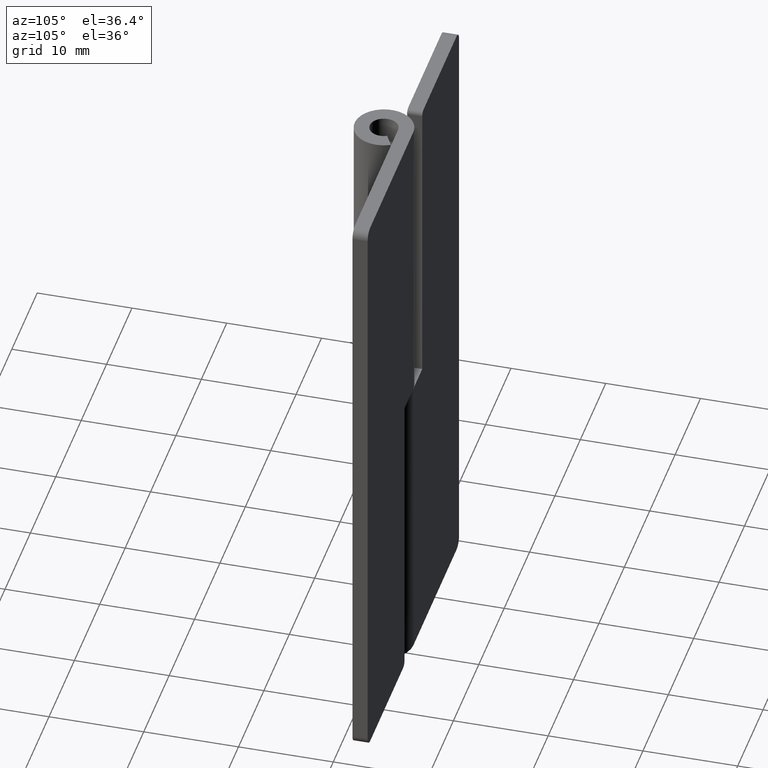
[diagram: clean part render]
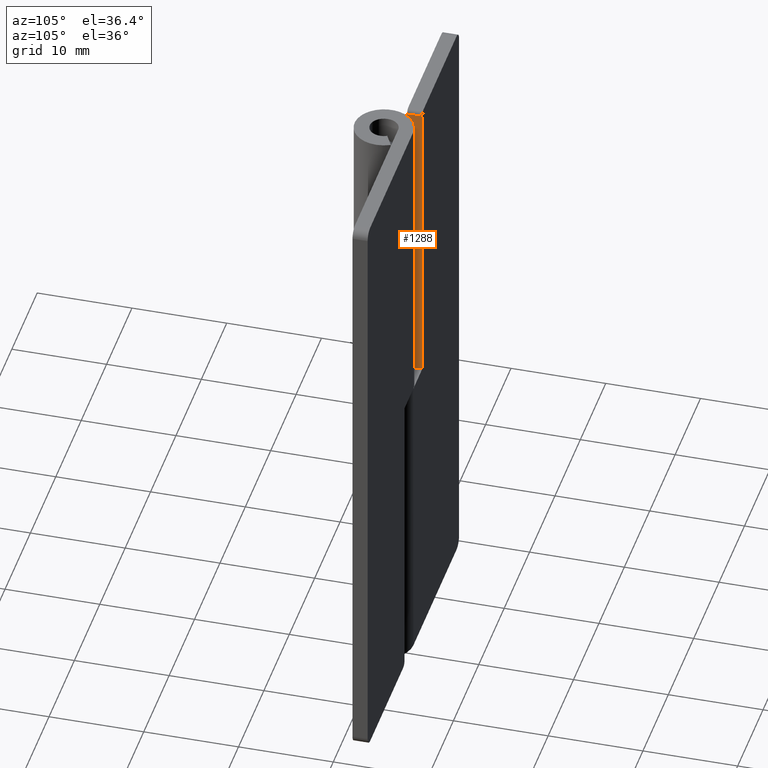
[diagram: same view with one face highlighted and labeled with its STEP entity id]
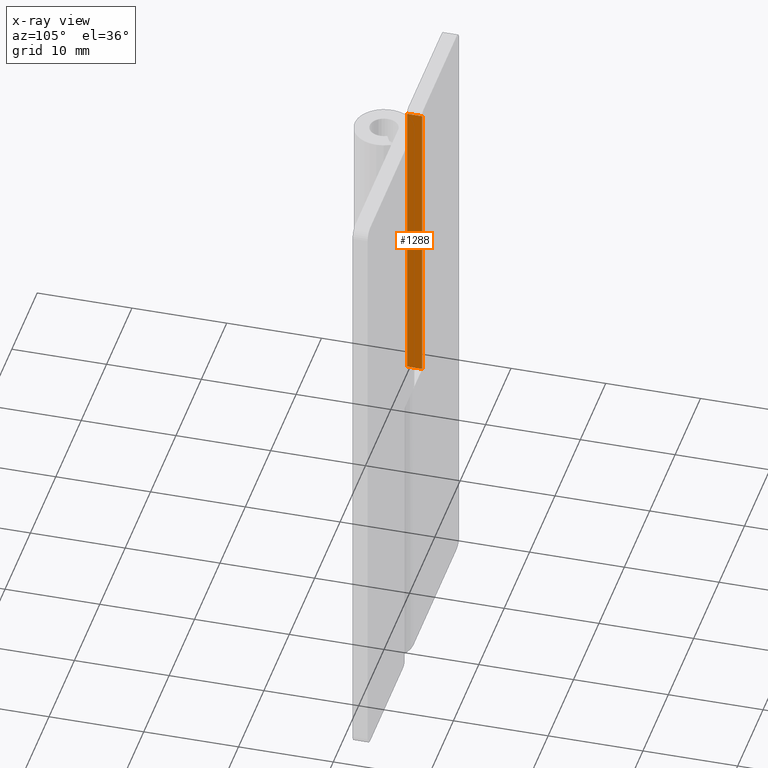
[diagram: x-ray of the same camera — body ghosted, the highlighted face saturated]
A machine part, auxiliary view. The second image highlights one B-rep face of the part: STEP entity #1288.
The next image is the same camera in x-ray: the body ghosted, the highlighted face saturated — about 0% of this face is hidden behind the body in this view.
In plain terms, the highlighted face is a freeform B-spline surface patch.
Its self-contained STEP definition (entity closure, byte-faithful):
#1002=CARTESIAN_POINT('',(-3.500000000000000,1.500000000000000,64.500000000000000));
#1003=VERTEX_POINT('',#1002);
#1019=CARTESIAN_POINT('',(-3.500000000000000,3.099998000000050,64.500000000000000));
#1020=VERTEX_POINT('',#1019);
#1021=CARTESIAN_POINT('',(-3.500000000000000,3.099998000000050,64.500000000000000));
#1022=CARTESIAN_POINT('',(-3.500000000000000,1.500000000000000,64.500000000000000));
#1023=QUASI_UNIFORM_CURVE('',1,(#1021,#1022),.UNSPECIFIED.,.F.,.U.);
#1024=EDGE_CURVE('',#1020,#1003,#1023,.T.);
#1084=CARTESIAN_POINT('',(-3.500000000000000,3.099998000000050,32.500000000000000));
#1085=VERTEX_POINT('',#1084);
#1091=CARTESIAN_POINT('',(-3.500000000000000,1.499999999999946,32.500000000000000));
#1092=VERTEX_POINT('',#1091);
#1093=CARTESIAN_POINT('',(-3.500000000000000,3.099998000000050,32.500000000000000));
#1094=CARTESIAN_POINT('',(-3.500000000000000,1.499999999999946,32.500000000000000));
#1095=QUASI_UNIFORM_CURVE('',1,(#1093,#1094),.UNSPECIFIED.,.F.,.U.);
#1096=EDGE_CURVE('',#1085,#1092,#1095,.T.);
#1269=CARTESIAN_POINT('',(-3.500000000000000,1.420080103001048,66.098399937977788));
#1270=CARTESIAN_POINT('',(-3.500000000000000,1.420080103001048,30.901599203715332));
#1271=CARTESIAN_POINT('',(-3.500000000000000,3.179917939914239,66.098399937977788));
#1272=CARTESIAN_POINT('',(-3.500000000000000,3.179917939914239,30.901599203715332));
#1273=B_SPLINE_SURFACE_WITH_KNOTS('',1,1,((#1269,#1271),(#1270,#1272)),.UNSPECIFIED.,.F.,.F.,.U.,(2,2),(2,2),(0.0,35.196800734262467),(0.041708334948495,0.958291687403247),.UNSPECIFIED.);
#1274=CARTESIAN_POINT('',(-3.500000000000000,3.099998000000050,32.500000000000000));
#1275=CARTESIAN_POINT('',(-3.500000000000000,3.099998000000050,64.500000000000000));
#1276=QUASI_UNIFORM_CURVE('',1,(#1274,#1275),.UNSPECIFIED.,.F.,.U.);
#1277=EDGE_CURVE('',#1085,#1020,#1276,.T.);
#1278=ORIENTED_EDGE('',*,*,#1277,.T.);
#1279=ORIENTED_EDGE('',*,*,#1024,.T.);
#1280=CARTESIAN_POINT('',(-3.500000000000000,1.499999999999946,32.500000000000000));
#1281=CARTESIAN_POINT('',(-3.500000000000000,1.500000000000000,64.500000000000000));
#1282=QUASI_UNIFORM_CURVE('',1,(#1280,#1281),.UNSPECIFIED.,.F.,.U.);
#1283=EDGE_CURVE('',#1092,#1003,#1282,.T.);
#1284=ORIENTED_EDGE('',*,*,#1283,.F.);
#1285=ORIENTED_EDGE('',*,*,#1096,.F.);
#1286=EDGE_LOOP('',(#1278,#1279,#1284,#1285));
#1287=FACE_OUTER_BOUND('',#1286,.T.);
#1288=ADVANCED_FACE('',(#1287),#1273,.T.);